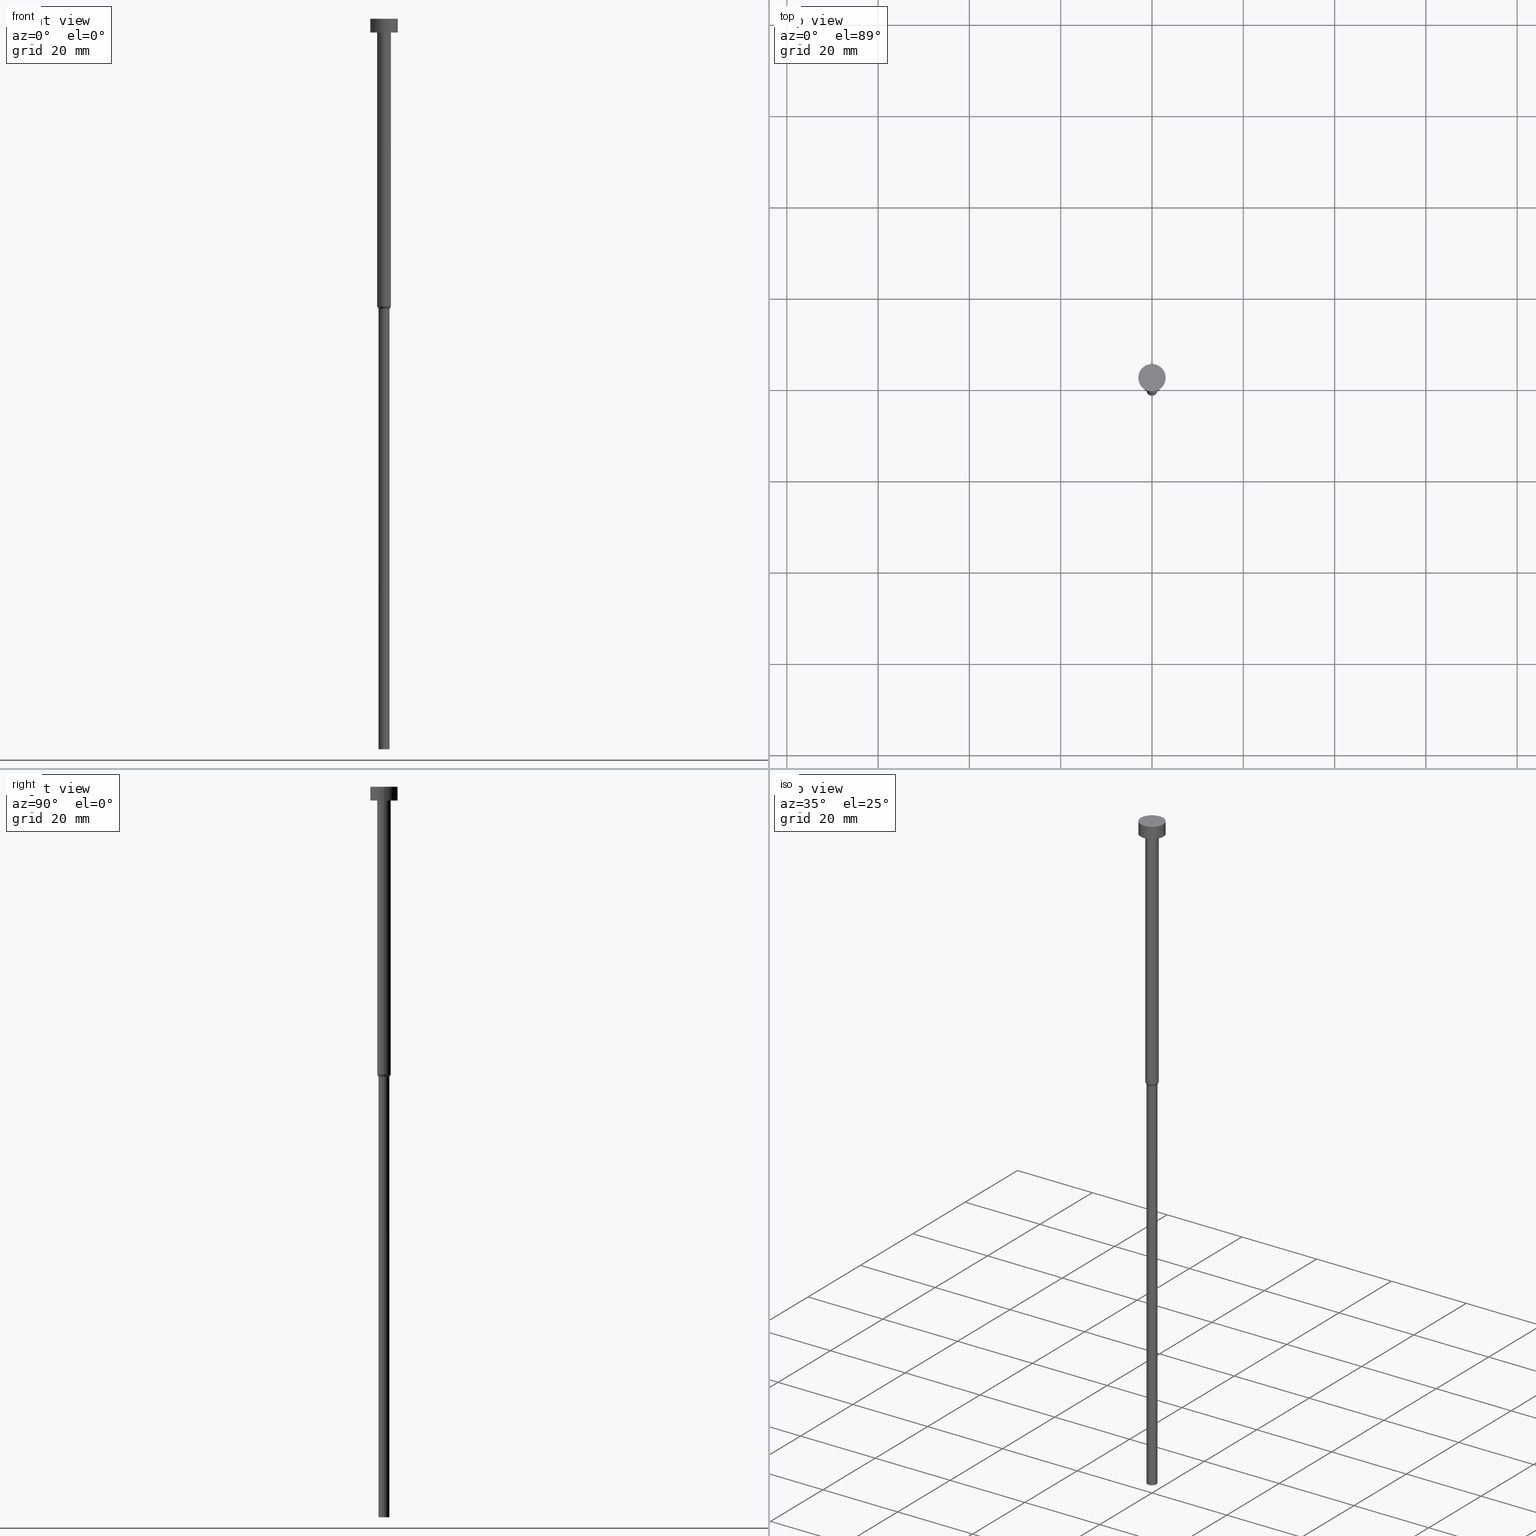
[diagram: canonical four-view strip — front | top / right | iso, engineering-drawing reading convention]
A machine part, canonical four-view strip (front | top / right | iso — engineering-drawing reading convention). The complete STEP part file that produces these views, byte-faithful:
ISO-10303-21;
HEADER;
FILE_DESCRIPTION (( 'STEP AP203' ),
    '1' );
FILE_NAME ('f124.STEP',
    '2023-02-13T10:00:31',
    ( '' ),
    ( '' ),
    'SwSTEP 2.0',
    'SolidWorks 2019',
    '' );
FILE_SCHEMA (( 'CONFIG_CONTROL_DESIGN' ));
ENDSEC;

DATA;
#1 = DATE_TIME_ROLE ( 'creation_date' ) ;
#2 = VECTOR ( 'NONE', #180, 1000.000000000000000 ) ;
#3 = VERTEX_POINT ( 'NONE', #332 ) ;
#4 = COORDINATED_UNIVERSAL_TIME_OFFSET ( 1, 0, .AHEAD. ) ;
#5 = ORIENTED_EDGE ( 'NONE', *, *, #19, .F. ) ;
#6 = EDGE_CURVE ( 'NONE', #333, #145, #274, .T. ) ;
#7 = ORIENTED_EDGE ( 'NONE', *, *, #243, .T. ) ;
#8 = ORIENTED_EDGE ( 'NONE', *, *, #52, .F. ) ;
#9 = CYLINDRICAL_SURFACE ( 'NONE', #347, 1.199999999999999956 ) ;
#10 = CIRCLE ( 'NONE', #55, 3.000000000000000000 ) ;
#11 = EDGE_LOOP ( 'NONE', ( #273, #87, #147, #197 ) ) ;
#12 = LINE ( 'NONE', #17, #229 ) ;
#13 = DIRECTION ( 'NONE',  ( 1.000000000000000000, 0.000000000000000000, 0.000000000000000000 ) ) ;
#14 = CLOSED_SHELL ( 'NONE', ( #231, #271, #200, #190, #234, #102, #115, #334, #46, #321, #302 ) ) ;
#15 = EDGE_CURVE ( 'NONE', #335, #109, #65, .T. ) ;
#16 = DIRECTION ( 'NONE',  ( -0.000000000000000000, -0.000000000000000000, 1.000000000000000000 ) ) ;
#17 = CARTESIAN_POINT ( 'NONE',  ( -1.500000000000000000, 1.836970198721029934E-16, -63.00000000000000000 ) ) ;
#18 = DIRECTION ( 'NONE',  ( 1.000000000000000000, 0.000000000000000000, 0.000000000000000000 ) ) ;
#19 = EDGE_CURVE ( 'NONE', #109, #335, #218, .T. ) ;
#20 = CC_DESIGN_APPROVAL ( #263, ( #241 ) ) ;
#21 =( NAMED_UNIT ( * ) SI_UNIT ( $, .STERADIAN. ) SOLID_ANGLE_UNIT ( ) );
#22 = FACE_OUTER_BOUND ( 'NONE', #256, .T. ) ;
#23 = AXIS2_PLACEMENT_3D ( 'NONE', #204, #343, #344 ) ;
#24 = FACE_OUTER_BOUND ( 'NONE', #205, .T. ) ;
#25 = AXIS2_PLACEMENT_3D ( 'NONE', #244, #129, #189 ) ;
#26 = PERSON_AND_ORGANIZATION ( #250, #183 ) ;
#27 = FACE_OUTER_BOUND ( 'NONE', #305, .T. ) ;
#28 = CALENDAR_DATE ( 2023, 13, 2 ) ;
#29 = CARTESIAN_POINT ( 'NONE',  ( -1.500000000000000000, 1.836970198721029934E-16, 0.000000000000000000 ) ) ;
#30 = ORIENTED_EDGE ( 'NONE', *, *, #119, .T. ) ;
#31 = CIRCLE ( 'NONE', #48, 1.199999999999999956 ) ;
#32 = APPLICATION_PROTOCOL_DEFINITION ( 'international standard', 'config_control_design', 1994, #132 ) ;
#33 = PRODUCT ( 'f124', 'f124', '', ( #58 ) ) ;
#34 = VERTEX_POINT ( 'NONE', #355 ) ;
#35 = DIRECTION ( 'NONE',  ( 1.000000000000000000, 0.000000000000000000, 0.000000000000000000 ) ) ;
#36 = EDGE_CURVE ( 'NONE', #154, #333, #354, .T. ) ;
#37 = LINE ( 'NONE', #288, #2 ) ;
#38 = ADVANCED_BREP_SHAPE_REPRESENTATION ( 'f124', ( #104, #308 ), #324 ) ;
#39 = CARTESIAN_POINT ( 'NONE',  ( 0.000000000000000000, 0.000000000000000000, -63.00000000000000000 ) ) ;
#40 = AXIS2_PLACEMENT_3D ( 'NONE', #133, #72, #240 ) ;
#41 = ORIENTED_EDGE ( 'NONE', *, *, #70, .T. ) ;
#42 = CARTESIAN_POINT ( 'NONE',  ( 0.000000000000000000, 0.000000000000000000, -160.0000000000000000 ) ) ;
#43 = CC_DESIGN_PERSON_AND_ORGANIZATION_ASSIGNMENT ( #196, #255, ( #241 ) ) ;
#44 = CARTESIAN_POINT ( 'NONE',  ( 0.000000000000000000, 0.000000000000000000, -3.000000000000000888 ) ) ;
#45 = AXIS2_PLACEMENT_3D ( 'NONE', #44, #239, #337 ) ;
#46 = ADVANCED_FACE ( 'NONE', ( #303, #27 ), #57, .T. ) ;
#47 = CARTESIAN_POINT ( 'NONE',  ( -1.199999999999999956, 1.469576158976823553E-16, -160.0000000000000000 ) ) ;
#48 = AXIS2_PLACEMENT_3D ( 'NONE', #97, #63, #286 ) ;
#49 = CYLINDRICAL_SURFACE ( 'NONE', #40, 1.500000000000000000 ) ;
#50 = CARTESIAN_POINT ( 'NONE',  ( 1.199999999999999956, 0.000000000000000000, 0.000000000000000000 ) ) ;
#51 = DIRECTION ( 'NONE',  ( 1.000000000000000000, 0.000000000000000000, 0.000000000000000000 ) ) ;
#52 = EDGE_CURVE ( 'NONE', #59, #83, #266, .T. ) ;
#53 = COORDINATED_UNIVERSAL_TIME_OFFSET ( 1, 0, .AHEAD. ) ;
#54 = DIRECTION ( 'NONE',  ( -0.000000000000000000, -0.000000000000000000, 1.000000000000000000 ) ) ;
#55 = AXIS2_PLACEMENT_3D ( 'NONE', #175, #68, #94 ) ;
#56 = ORIENTED_EDGE ( 'NONE', *, *, #19, .T. ) ;
#57 = PLANE ( 'NONE',  #141 ) ;
#58 = MECHANICAL_CONTEXT ( 'NONE', #296, 'mechanical' ) ;
#59 = VERTEX_POINT ( 'NONE', #232 ) ;
#60 = AXIS2_PLACEMENT_3D ( 'NONE', #245, #295, #134 ) ;
#61 = PERSON_AND_ORGANIZATION_ROLE ( 'creator' ) ;
#62 = DIRECTION ( 'NONE',  ( -0.000000000000000000, -0.000000000000000000, 1.000000000000000000 ) ) ;
#63 = DIRECTION ( 'NONE',  ( -0.000000000000000000, -0.000000000000000000, 1.000000000000000000 ) ) ;
#64 = DIRECTION ( 'NONE',  ( -0.000000000000000000, -0.000000000000000000, 1.000000000000000000 ) ) ;
#65 = CIRCLE ( 'NONE', #110, 3.000000000000000000 ) ;
#66 = DIRECTION ( 'NONE',  ( 1.000000000000000000, 0.000000000000000000, 0.000000000000000000 ) ) ;
#67 = FACE_OUTER_BOUND ( 'NONE', #230, .T. ) ;
#68 = DIRECTION ( 'NONE',  ( -0.000000000000000000, -0.000000000000000000, 1.000000000000000000 ) ) ;
#69 = CONICAL_SURFACE ( 'NONE', #117, 1.500000000000000000, 0.5235987755982992597 ) ;
#70 = EDGE_CURVE ( 'NONE', #145, #3, #188, .T. ) ;
#71 = DIRECTION ( 'NONE',  ( -0.000000000000000000, -0.000000000000000000, 1.000000000000000000 ) ) ;
#72 = DIRECTION ( 'NONE',  ( -0.000000000000000000, -0.000000000000000000, 1.000000000000000000 ) ) ;
#73 = CYLINDRICAL_SURFACE ( 'NONE', #60, 3.000000000000000000 ) ;
#74 = CARTESIAN_POINT ( 'NONE',  ( 3.000000000000000000, 0.000000000000000000, 0.000000000000000000 ) ) ;
#75 = PLANE ( 'NONE',  #25 ) ;
#76 = DESIGN_CONTEXT ( 'detailed design', #132, 'design' ) ;
#77 = PERSON_AND_ORGANIZATION_ROLE ( 'design_owner' ) ;
#78 = APPROVAL_ROLE ( '' ) ;
#79 = PERSON_AND_ORGANIZATION ( #250, #183 ) ;
#80 = ORIENTED_EDGE ( 'NONE', *, *, #192, .F. ) ;
#81 = DATE_AND_TIME ( #108, #159 ) ;
#82 = VECTOR ( 'NONE', #156, 1000.000000000000000 ) ;
#83 = VERTEX_POINT ( 'NONE', #47 ) ;
#84 = CC_DESIGN_PERSON_AND_ORGANIZATION_ASSIGNMENT ( #144, #168, ( #249 ) ) ;
#85 = ORIENTED_EDGE ( 'NONE', *, *, #98, .F. ) ;
#86 = ORIENTED_EDGE ( 'NONE', *, *, #140, .T. ) ;
#87 = ORIENTED_EDGE ( 'NONE', *, *, #216, .T. ) ;
#88 = DIRECTION ( 'NONE',  ( 1.000000000000000000, 0.000000000000000000, 0.000000000000000000 ) ) ;
#89 = ORIENTED_EDGE ( 'NONE', *, *, #342, .T. ) ;
#90 = APPROVAL ( #146, 'NEUR�EN�' ) ;
#91 = PLANE ( 'NONE',  #290 ) ;
#92 = ORIENTED_EDGE ( 'NONE', *, *, #346, .F. ) ;
#93 = CIRCLE ( 'NONE', #207, 1.199999999999999956 ) ;
#94 = DIRECTION ( 'NONE',  ( 1.000000000000000000, 0.000000000000000000, 0.000000000000000000 ) ) ;
#95 = ORIENTED_EDGE ( 'NONE', *, *, #6, .T. ) ;
#96 = DIRECTION ( 'NONE',  ( 1.000000000000000000, 0.000000000000000000, 0.000000000000000000 ) ) ;
#97 = CARTESIAN_POINT ( 'NONE',  ( 0.000000000000000000, 0.000000000000000000, -63.51961524227066036 ) ) ;
#98 = EDGE_CURVE ( 'NONE', #169, #109, #235, .T. ) ;
#99 = LINE ( 'NONE', #215, #268 ) ;
#100 = APPROVAL_PERSON_ORGANIZATION ( #304, #150, #353 ) ;
#101 = DIRECTION ( 'NONE',  ( -0.000000000000000000, -0.000000000000000000, 1.000000000000000000 ) ) ;
#102 = ADVANCED_FACE ( 'NONE', ( #160 ), #340, .T. ) ;
#103 = CARTESIAN_POINT ( 'NONE',  ( 3.000000000000000000, 0.000000000000000000, -3.000000000000000888 ) ) ;
#104 = MANIFOLD_SOLID_BREP ( 'Rotovat1', #14 ) ;
#105 = CARTESIAN_POINT ( 'NONE',  ( -1.199999999999999956, 1.469576158976823553E-16, -63.51961524227066036 ) ) ;
#106 = AXIS2_PLACEMENT_3D ( 'NONE', #320, #214, #187 ) ;
#107 = CALENDAR_DATE ( 2023, 13, 2 ) ;
#108 = CALENDAR_DATE ( 2023, 13, 2 ) ;
#109 = VERTEX_POINT ( 'NONE', #269 ) ;
#110 = AXIS2_PLACEMENT_3D ( 'NONE', #307, #139, #173 ) ;
#111 = EDGE_LOOP ( 'NONE', ( #221, #260, #137, #338 ) ) ;
#112 = VECTOR ( 'NONE', #313, 1000.000000000000000 ) ;
#113 = APPROVAL_DATE_TIME ( #81, #150 ) ;
#114 = ORIENTED_EDGE ( 'NONE', *, *, #297, .T. ) ;
#115 = ADVANCED_FACE ( 'NONE', ( #262 ), #69, .T. ) ;
#116 = ORIENTED_EDGE ( 'NONE', *, *, #98, .T. ) ;
#117 = AXIS2_PLACEMENT_3D ( 'NONE', #238, #64, #88 ) ;
#118 = EDGE_LOOP ( 'NONE', ( #310, #95, #195, #228 ) ) ;
#119 = EDGE_CURVE ( 'NONE', #236, #333, #12, .T. ) ;
#120 = PRODUCT_DEFINITION_FORMATION_WITH_SPECIFIED_SOURCE ( 'LIBOVOLN�', '', #33, .NOT_KNOWN. ) ;
#121 = FACE_OUTER_BOUND ( 'NONE', #331, .T. ) ;
#122 = ORIENTED_EDGE ( 'NONE', *, *, #192, .T. ) ;
#123 = FACE_OUTER_BOUND ( 'NONE', #276, .T. ) ;
#124 = CARTESIAN_POINT ( 'NONE',  ( -1.199999999999999956, 1.469576158976823553E-16, 0.000000000000000000 ) ) ;
#125 = ORIENTED_EDGE ( 'NONE', *, *, #15, .F. ) ;
#126 = DIRECTION ( 'NONE',  ( -0.000000000000000000, -0.000000000000000000, 1.000000000000000000 ) ) ;
#127 = CC_DESIGN_SECURITY_CLASSIFICATION ( #241, ( #120 ) ) ;
#128 = LINE ( 'NONE', #124, #112 ) ;
#129 = DIRECTION ( 'NONE',  ( 0.000000000000000000, -0.000000000000000000, 1.000000000000000000 ) ) ;
#130 = CC_DESIGN_APPROVAL ( #90, ( #120 ) ) ;
#131 = DIRECTION ( 'NONE',  ( -1.000000000000000000, 0.000000000000000000, -0.000000000000000000 ) ) ;
#132 = APPLICATION_CONTEXT ( 'configuration controlled 3d designs of mechanical parts and assemblies' ) ;
#133 = CARTESIAN_POINT ( 'NONE',  ( 0.000000000000000000, 0.000000000000000000, 0.000000000000000000 ) ) ;
#134 = DIRECTION ( 'NONE',  ( 1.000000000000000000, 0.000000000000000000, 0.000000000000000000 ) ) ;
#135 = VECTOR ( 'NONE', #161, 1000.000000000000000 ) ;
#136 = SHAPE_DEFINITION_REPRESENTATION ( #181, #38 ) ;
#137 = ORIENTED_EDGE ( 'NONE', *, *, #289, .T. ) ;
#138 = DATE_AND_TIME ( #28, #300 ) ;
#139 = DIRECTION ( 'NONE',  ( -0.000000000000000000, -0.000000000000000000, 1.000000000000000000 ) ) ;
#140 = EDGE_CURVE ( 'NONE', #301, #169, #10, .T. ) ;
#141 = AXIS2_PLACEMENT_3D ( 'NONE', #223, #226, #309 ) ;
#142 = DATE_TIME_ROLE ( 'classification_date' ) ;
#143 = DIRECTION ( 'NONE',  ( 1.000000000000000000, 0.000000000000000000, 0.000000000000000000 ) ) ;
#144 = PERSON_AND_ORGANIZATION ( #250, #183 ) ;
#145 = VERTEX_POINT ( 'NONE', #151 ) ;
#146 = APPROVAL_STATUS ( 'not_yet_approved' ) ;
#147 = ORIENTED_EDGE ( 'NONE', *, *, #212, .T. ) ;
#148 = EDGE_LOOP ( 'NONE', ( #7, #41 ) ) ;
#149 = VECTOR ( 'NONE', #277, 1000.000000000000000 ) ;
#150 = APPROVAL ( #247, 'NEUR�EN�' ) ;
#151 = CARTESIAN_POINT ( 'NONE',  ( -1.500000000000000000, 1.836970198721029934E-16, -3.000000000000000888 ) ) ;
#152 = CIRCLE ( 'NONE', #254, 3.000000000000000000 ) ;
#153 = DIRECTION ( 'NONE',  ( -0.000000000000000000, -0.000000000000000000, 1.000000000000000000 ) ) ;
#154 = VERTEX_POINT ( 'NONE', #209 ) ;
#155 = DIRECTION ( 'NONE',  ( -0.000000000000000000, -0.000000000000000000, 1.000000000000000000 ) ) ;
#156 = DIRECTION ( 'NONE',  ( -0.000000000000000000, -0.000000000000000000, 1.000000000000000000 ) ) ;
#157 = AXIS2_PLACEMENT_3D ( 'NONE', #202, #54, #143 ) ;
#158 = EDGE_CURVE ( 'NONE', #83, #236, #128, .T. ) ;
#159 = LOCAL_TIME ( 11, 0, 31.00000000000000000, #272 ) ;
#160 = FACE_OUTER_BOUND ( 'NONE', #166, .T. ) ;
#161 = DIRECTION ( 'NONE',  ( -0.000000000000000000, -0.000000000000000000, 1.000000000000000000 ) ) ;
#162 = CARTESIAN_POINT ( 'NONE',  ( -1.500000000000000000, 1.836970198721029934E-16, -63.00000000000000000 ) ) ;
#163 = DIRECTION ( 'NONE',  ( 1.000000000000000000, 0.000000000000000000, 0.000000000000000000 ) ) ;
#164 = CIRCLE ( 'NONE', #341, 1.500000000000000000 ) ;
#165 = DIRECTION ( 'NONE',  ( 0.000000000000000000, 0.000000000000000000, -1.000000000000000000 ) ) ;
#166 = EDGE_LOOP ( 'NONE', ( #203, #114, #89, #92 ) ) ;
#167 = ORIENTED_EDGE ( 'NONE', *, *, #158, .T. ) ;
#168 = PERSON_AND_ORGANIZATION_ROLE ( 'creator' ) ;
#169 = VERTEX_POINT ( 'NONE', #179 ) ;
#170 = EDGE_CURVE ( 'NONE', #169, #301, #152, .T. ) ;
#171 = ORIENTED_EDGE ( 'NONE', *, *, #297, .F. ) ;
#172 = CALENDAR_DATE ( 2023, 13, 2 ) ;
#173 = DIRECTION ( 'NONE',  ( 1.000000000000000000, 0.000000000000000000, 0.000000000000000000 ) ) ;
#174 = CC_DESIGN_PERSON_AND_ORGANIZATION_ASSIGNMENT ( #79, #61, ( #120 ) ) ;
#175 = CARTESIAN_POINT ( 'NONE',  ( 0.000000000000000000, 0.000000000000000000, -3.000000000000000888 ) ) ;
#176 = FACE_OUTER_BOUND ( 'NONE', #328, .T. ) ;
#177 = ORIENTED_EDGE ( 'NONE', *, *, #311, .F. ) ;
#178 = LOCAL_TIME ( 11, 0, 31.00000000000000000, #325 ) ;
#179 = CARTESIAN_POINT ( 'NONE',  ( -3.000000000000000000, 3.673940397442059868E-16, -3.000000000000000888 ) ) ;
#180 = DIRECTION ( 'NONE',  ( -0.000000000000000000, -0.000000000000000000, 1.000000000000000000 ) ) ;
#181 = PRODUCT_DEFINITION_SHAPE ( 'NONE', 'NONE',  #249 ) ;
#182 = CARTESIAN_POINT ( 'NONE',  ( -3.000000000000000000, 3.673940397442059868E-16, 0.000000000000000000 ) ) ;
#183 = ORGANIZATION ( 'NEUR�EN�', 'NEUR�EN�', '' ) ;
#184 = FACE_OUTER_BOUND ( 'NONE', #11, .T. ) ;
#185 = PRODUCT_RELATED_PRODUCT_CATEGORY ( 'detail', '', ( #33 ) ) ;
#186 = LINE ( 'NONE', #50, #135 ) ;
#187 = DIRECTION ( 'NONE',  ( 1.000000000000000000, 0.000000000000000000, 0.000000000000000000 ) ) ;
#188 = CIRCLE ( 'NONE', #45, 1.500000000000000000 ) ;
#189 = DIRECTION ( 'NONE',  ( 1.000000000000000000, 0.000000000000000000, 0.000000000000000000 ) ) ;
#190 = ADVANCED_FACE ( 'NONE', ( #123 ), #9, .T. ) ;
#191 = APPROVAL_ROLE ( '' ) ;
#192 = EDGE_CURVE ( 'NONE', #34, #236, #31, .T. ) ;
#193 = ORIENTED_EDGE ( 'NONE', *, *, #170, .T. ) ;
#194 = AXIS2_PLACEMENT_3D ( 'NONE', #345, #101, #18 ) ;
#195 = ORIENTED_EDGE ( 'NONE', *, *, #243, .F. ) ;
#196 = PERSON_AND_ORGANIZATION ( #250, #183 ) ;
#197 = ORIENTED_EDGE ( 'NONE', *, *, #70, .F. ) ;
#198 = PERSON_AND_ORGANIZATION ( #250, #183 ) ;
#199 = ORIENTED_EDGE ( 'NONE', *, *, #342, .F. ) ;
#200 = ADVANCED_FACE ( 'NONE', ( #67 ), #224, .T. ) ;
#201 = LOCAL_TIME ( 11, 0, 31.00000000000000000, #306 ) ;
#202 = CARTESIAN_POINT ( 'NONE',  ( 0.000000000000000000, 0.000000000000000000, -63.00000000000000000 ) ) ;
#203 = ORIENTED_EDGE ( 'NONE', *, *, #158, .F. ) ;
#204 = CARTESIAN_POINT ( 'NONE',  ( 0.000000000000000000, 0.000000000000000000, 0.000000000000000000 ) ) ;
#205 = EDGE_LOOP ( 'NONE', ( #85, #193, #352, #5 ) ) ;
#206 = CARTESIAN_POINT ( 'NONE',  ( 0.000000000000000000, 0.000000000000000000, -160.0000000000000000 ) ) ;
#207 = AXIS2_PLACEMENT_3D ( 'NONE', #318, #71, #51 ) ;
#208 = CC_DESIGN_DATE_AND_TIME_ASSIGNMENT ( #220, #142, ( #241 ) ) ;
#209 = CARTESIAN_POINT ( 'NONE',  ( 1.500000000000000000, 0.000000000000000000, -63.00000000000000000 ) ) ;
#210 = ORIENTED_EDGE ( 'NONE', *, *, #140, .F. ) ;
#211 = DIRECTION ( 'NONE',  ( 0.5000000000000003331, 0.000000000000000000, 0.8660254037844383745 ) ) ;
#212 = EDGE_CURVE ( 'NONE', #154, #3, #37, .T. ) ;
#213 = AXIS2_PLACEMENT_3D ( 'NONE', #316, #16, #259 ) ;
#214 = DIRECTION ( 'NONE',  ( -0.000000000000000000, -0.000000000000000000, 1.000000000000000000 ) ) ;
#215 = CARTESIAN_POINT ( 'NONE',  ( 1.500000000000000000, 0.000000000000000000, -63.00000000000000000 ) ) ;
#216 = EDGE_CURVE ( 'NONE', #333, #154, #164, .T. ) ;
#217 = CARTESIAN_POINT ( 'NONE',  ( 3.000000000000000000, 0.000000000000000000, -3.673940397442059868E-16 ) ) ;
#218 = CIRCLE ( 'NONE', #293, 3.000000000000000000 ) ;
#219 = CIRCLE ( 'NONE', #194, 1.500000000000000000 ) ;
#220 = DATE_AND_TIME ( #107, #285 ) ;
#221 = ORIENTED_EDGE ( 'NONE', *, *, #119, .F. ) ;
#222 = APPROVAL_DATE_TIME ( #299, #263 ) ;
#223 = CARTESIAN_POINT ( 'NONE',  ( 0.000000000000000000, -3.000000000000000000, -3.000000000000000888 ) ) ;
#224 = CONICAL_SURFACE ( 'NONE', #314, 1.500000000000000000, 0.5235987755982992597 ) ;
#225 = CALENDAR_DATE ( 2023, 13, 2 ) ;
#226 = DIRECTION ( 'NONE',  ( 0.000000000000000000, 0.000000000000000000, -1.000000000000000000 ) ) ;
#227 = DIRECTION ( 'NONE',  ( 1.000000000000000000, 0.000000000000000000, 0.000000000000000000 ) ) ;
#228 = ORIENTED_EDGE ( 'NONE', *, *, #212, .F. ) ;
#229 = VECTOR ( 'NONE', #284, 1000.000000000000114 ) ;
#230 = EDGE_LOOP ( 'NONE', ( #122, #30, #258, #281 ) ) ;
#231 = ADVANCED_FACE ( 'NONE', ( #121 ), #336, .T. ) ;
#232 = CARTESIAN_POINT ( 'NONE',  ( 1.199999999999999956, 0.000000000000000000, -160.0000000000000000 ) ) ;
#233 = DIRECTION ( 'NONE',  ( -0.000000000000000000, -0.000000000000000000, 1.000000000000000000 ) ) ;
#234 = ADVANCED_FACE ( 'NONE', ( #176 ), #91, .T. ) ;
#235 = LINE ( 'NONE', #182, #82 ) ;
#236 = VERTEX_POINT ( 'NONE', #105 ) ;
#237 = CIRCLE ( 'NONE', #278, 1.199999999999999956 ) ;
#238 = CARTESIAN_POINT ( 'NONE',  ( 0.000000000000000000, 0.000000000000000000, -63.00000000000000000 ) ) ;
#239 = DIRECTION ( 'NONE',  ( -0.000000000000000000, -0.000000000000000000, 1.000000000000000000 ) ) ;
#240 = DIRECTION ( 'NONE',  ( 1.000000000000000000, 0.000000000000000000, 0.000000000000000000 ) ) ;
#241 = SECURITY_CLASSIFICATION ( '', '', #257 ) ;
#242 = DIRECTION ( 'NONE',  ( 0.000000000000000000, 0.000000000000000000, 1.000000000000000000 ) ) ;
#243 = EDGE_CURVE ( 'NONE', #3, #145, #219, .T. ) ;
#244 = CARTESIAN_POINT ( 'NONE',  ( 0.000000000000000000, 0.000000000000000000, -1.836970198721029934E-16 ) ) ;
#245 = CARTESIAN_POINT ( 'NONE',  ( 0.000000000000000000, 0.000000000000000000, 0.000000000000000000 ) ) ;
#246 =( NAMED_UNIT ( * ) PLANE_ANGLE_UNIT ( ) SI_UNIT ( $, .RADIAN. ) );
#247 = APPROVAL_STATUS ( 'not_yet_approved' ) ;
#248 = ORIENTED_EDGE ( 'NONE', *, *, #15, .T. ) ;
#249 = PRODUCT_DEFINITION ( 'NEZN�M�', '', #120, #76 ) ;
#250 = PERSON ( 'NEUR�EN�', 'NEUR�EN�', 'NEUR�EN�', ('NEUR�EN�'), ('NEUR�EN�'), ('NEUR�EN�') ) ;
#251 = CARTESIAN_POINT ( 'NONE',  ( 0.000000000000000000, 0.000000000000000000, -3.673940397442059868E-16 ) ) ;
#252 = APPROVAL_STATUS ( 'not_yet_approved' ) ;
#253 = ORIENTED_EDGE ( 'NONE', *, *, #170, .F. ) ;
#254 = AXIS2_PLACEMENT_3D ( 'NONE', #315, #126, #96 ) ;
#255 = PERSON_AND_ORGANIZATION_ROLE ( 'classification_officer' ) ;
#256 = EDGE_LOOP ( 'NONE', ( #248, #56 ) ) ;
#257 = SECURITY_CLASSIFICATION_LEVEL ( 'unclassified' ) ;
#258 = ORIENTED_EDGE ( 'NONE', *, *, #36, .F. ) ;
#259 = DIRECTION ( 'NONE',  ( 1.000000000000000000, 0.000000000000000000, 0.000000000000000000 ) ) ;
#260 = ORIENTED_EDGE ( 'NONE', *, *, #346, .T. ) ;
#261 = VECTOR ( 'NONE', #322, 1000.000000000000000 ) ;
#262 = FACE_OUTER_BOUND ( 'NONE', #111, .T. ) ;
#263 = APPROVAL ( #252, 'NEUR�EN�' ) ;
#264 = ORIENTED_EDGE ( 'NONE', *, *, #52, .T. ) ;
#265 = CARTESIAN_POINT ( 'NONE',  ( 0.000000000000000000, 0.000000000000000000, 0.000000000000000000 ) ) ;
#266 = CIRCLE ( 'NONE', #339, 1.199999999999999956 ) ;
#267 = CARTESIAN_POINT ( 'NONE',  ( 0.000000000000000000, 0.000000000000000000, -63.00000000000000000 ) ) ;
#268 = VECTOR ( 'NONE', #211, 1000.000000000000114 ) ;
#269 = CARTESIAN_POINT ( 'NONE',  ( -3.000000000000000000, 3.673940397442059868E-16, -3.673940397442059868E-16 ) ) ;
#270 = CARTESIAN_POINT ( 'NONE',  ( 0.000000000000000000, 0.000000000000000000, -63.51961524227066036 ) ) ;
#271 = ADVANCED_FACE ( 'NONE', ( #291 ), #49, .T. ) ;
#272 = COORDINATED_UNIVERSAL_TIME_OFFSET ( 1, 0, .AHEAD. ) ;
#273 = ORIENTED_EDGE ( 'NONE', *, *, #6, .F. ) ;
#274 = LINE ( 'NONE', #29, #149 ) ;
#275 = APPROVAL_DATE_TIME ( #138, #90 ) ;
#276 = EDGE_LOOP ( 'NONE', ( #264, #167, #80, #199 ) ) ;
#277 = DIRECTION ( 'NONE',  ( -0.000000000000000000, -0.000000000000000000, 1.000000000000000000 ) ) ;
#278 = AXIS2_PLACEMENT_3D ( 'NONE', #270, #323, #163 ) ;
#279 = CC_DESIGN_PERSON_AND_ORGANIZATION_ASSIGNMENT ( #198, #77, ( #33 ) ) ;
#280 = PERSON_AND_ORGANIZATION_ROLE ( 'design_supplier' ) ;
#281 = ORIENTED_EDGE ( 'NONE', *, *, #289, .F. ) ;
#282 = DIRECTION ( 'NONE',  ( 1.000000000000000000, 0.000000000000000000, 0.000000000000000000 ) ) ;
#283 = CC_DESIGN_DATE_AND_TIME_ASSIGNMENT ( #330, #1, ( #249 ) ) ;
#284 = DIRECTION ( 'NONE',  ( -0.5000000000000003331, 6.123233995736769734E-17, 0.8660254037844383745 ) ) ;
#285 = LOCAL_TIME ( 11, 0, 31.00000000000000000, #4 ) ;
#286 = DIRECTION ( 'NONE',  ( 1.000000000000000000, 0.000000000000000000, 0.000000000000000000 ) ) ;
#287 = DIRECTION ( 'NONE',  ( -0.000000000000000000, -0.000000000000000000, 1.000000000000000000 ) ) ;
#288 = CARTESIAN_POINT ( 'NONE',  ( 1.500000000000000000, 0.000000000000000000, 0.000000000000000000 ) ) ;
#289 = EDGE_CURVE ( 'NONE', #34, #154, #99, .T. ) ;
#290 = AXIS2_PLACEMENT_3D ( 'NONE', #206, #165, #131 ) ;
#291 = FACE_OUTER_BOUND ( 'NONE', #118, .T. ) ;
#292 =( LENGTH_UNIT ( ) NAMED_UNIT ( * ) SI_UNIT ( .MILLI., .METRE. ) );
#293 = AXIS2_PLACEMENT_3D ( 'NONE', #251, #62, #35 ) ;
#294 = LINE ( 'NONE', #74, #261 ) ;
#295 = DIRECTION ( 'NONE',  ( -0.000000000000000000, -0.000000000000000000, 1.000000000000000000 ) ) ;
#296 = APPLICATION_CONTEXT ( 'configuration controlled 3d designs of mechanical parts and assemblies' ) ;
#297 = EDGE_CURVE ( 'NONE', #83, #59, #93, .T. ) ;
#298 = PERSON_AND_ORGANIZATION ( #250, #183 ) ;
#299 = DATE_AND_TIME ( #225, #178 ) ;
#300 = LOCAL_TIME ( 11, 0, 31.00000000000000000, #53 ) ;
#301 = VERTEX_POINT ( 'NONE', #103 ) ;
#302 = ADVANCED_FACE ( 'NONE', ( #22 ), #75, .T. ) ;
#303 = FACE_BOUND ( 'NONE', #148, .T. ) ;
#304 = PERSON_AND_ORGANIZATION ( #250, #183 ) ;
#305 = EDGE_LOOP ( 'NONE', ( #210, #253 ) ) ;
#306 = COORDINATED_UNIVERSAL_TIME_OFFSET ( 1, 0, .AHEAD. ) ;
#307 = CARTESIAN_POINT ( 'NONE',  ( 0.000000000000000000, 0.000000000000000000, -3.673940397442059868E-16 ) ) ;
#308 = AXIS2_PLACEMENT_3D ( 'NONE', #348, #242, #227 ) ;
#309 = DIRECTION ( 'NONE',  ( -1.000000000000000000, 0.000000000000000000, -0.000000000000000000 ) ) ;
#310 = ORIENTED_EDGE ( 'NONE', *, *, #36, .T. ) ;
#311 = EDGE_CURVE ( 'NONE', #301, #335, #294, .T. ) ;
#312 = DIRECTION ( 'NONE',  ( 1.000000000000000000, 0.000000000000000000, 0.000000000000000000 ) ) ;
#313 = DIRECTION ( 'NONE',  ( -0.000000000000000000, -0.000000000000000000, 1.000000000000000000 ) ) ;
#314 = AXIS2_PLACEMENT_3D ( 'NONE', #39, #153, #282 ) ;
#315 = CARTESIAN_POINT ( 'NONE',  ( 0.000000000000000000, 0.000000000000000000, -3.000000000000000888 ) ) ;
#316 = CARTESIAN_POINT ( 'NONE',  ( 0.000000000000000000, 0.000000000000000000, 0.000000000000000000 ) ) ;
#317 = CC_DESIGN_PERSON_AND_ORGANIZATION_ASSIGNMENT ( #298, #280, ( #120 ) ) ;
#318 = CARTESIAN_POINT ( 'NONE',  ( 0.000000000000000000, 0.000000000000000000, -160.0000000000000000 ) ) ;
#319 = APPROVAL_PERSON_ORGANIZATION ( #326, #90, #191 ) ;
#320 = CARTESIAN_POINT ( 'NONE',  ( 0.000000000000000000, 0.000000000000000000, 0.000000000000000000 ) ) ;
#321 = ADVANCED_FACE ( 'NONE', ( #24 ), #73, .T. ) ;
#322 = DIRECTION ( 'NONE',  ( -0.000000000000000000, -0.000000000000000000, 1.000000000000000000 ) ) ;
#323 = DIRECTION ( 'NONE',  ( -0.000000000000000000, -0.000000000000000000, 1.000000000000000000 ) ) ;
#324 =( GEOMETRIC_REPRESENTATION_CONTEXT ( 3 ) GLOBAL_UNCERTAINTY_ASSIGNED_CONTEXT ( ( #329 ) ) GLOBAL_UNIT_ASSIGNED_CONTEXT ( ( #292, #246, #21 ) ) REPRESENTATION_CONTEXT ( 'NONE', 'WORKASPACE' ) );
#325 = COORDINATED_UNIVERSAL_TIME_OFFSET ( 1, 0, .AHEAD. ) ;
#326 = PERSON_AND_ORGANIZATION ( #250, #183 ) ;
#327 = APPROVAL_PERSON_ORGANIZATION ( #26, #263, #78 ) ;
#328 = EDGE_LOOP ( 'NONE', ( #8, #171 ) ) ;
#329 = UNCERTAINTY_MEASURE_WITH_UNIT (LENGTH_MEASURE( 1.000000000000000082E-05 ), #292, 'distance_accuracy_value', 'NONE');
#330 = DATE_AND_TIME ( #172, #201 ) ;
#331 = EDGE_LOOP ( 'NONE', ( #86, #116, #125, #177 ) ) ;
#332 = CARTESIAN_POINT ( 'NONE',  ( 1.500000000000000000, 0.000000000000000000, -3.000000000000000888 ) ) ;
#333 = VERTEX_POINT ( 'NONE', #162 ) ;
#334 = ADVANCED_FACE ( 'NONE', ( #184 ), #350, .T. ) ;
#335 = VERTEX_POINT ( 'NONE', #217 ) ;
#336 = CYLINDRICAL_SURFACE ( 'NONE', #213, 3.000000000000000000 ) ;
#337 = DIRECTION ( 'NONE',  ( 1.000000000000000000, 0.000000000000000000, 0.000000000000000000 ) ) ;
#338 = ORIENTED_EDGE ( 'NONE', *, *, #216, .F. ) ;
#339 = AXIS2_PLACEMENT_3D ( 'NONE', #42, #155, #66 ) ;
#340 = CYLINDRICAL_SURFACE ( 'NONE', #23, 1.199999999999999956 ) ;
#341 = AXIS2_PLACEMENT_3D ( 'NONE', #267, #287, #312 ) ;
#342 = EDGE_CURVE ( 'NONE', #59, #34, #186, .T. ) ;
#343 = DIRECTION ( 'NONE',  ( -0.000000000000000000, -0.000000000000000000, 1.000000000000000000 ) ) ;
#344 = DIRECTION ( 'NONE',  ( 1.000000000000000000, 0.000000000000000000, 0.000000000000000000 ) ) ;
#345 = CARTESIAN_POINT ( 'NONE',  ( 0.000000000000000000, 0.000000000000000000, -3.000000000000000888 ) ) ;
#346 = EDGE_CURVE ( 'NONE', #236, #34, #237, .T. ) ;
#347 = AXIS2_PLACEMENT_3D ( 'NONE', #265, #233, #13 ) ;
#348 = CARTESIAN_POINT ( 'NONE',  ( 0.000000000000000000, 0.000000000000000000, 0.000000000000000000 ) ) ;
#349 = APPLICATION_PROTOCOL_DEFINITION ( 'international standard', 'config_control_design', 1994, #296 ) ;
#350 = CYLINDRICAL_SURFACE ( 'NONE', #106, 1.500000000000000000 ) ;
#351 = CC_DESIGN_APPROVAL ( #150, ( #249 ) ) ;
#352 = ORIENTED_EDGE ( 'NONE', *, *, #311, .T. ) ;
#353 = APPROVAL_ROLE ( '' ) ;
#354 = CIRCLE ( 'NONE', #157, 1.500000000000000000 ) ;
#355 = CARTESIAN_POINT ( 'NONE',  ( 1.199999999999999956, 0.000000000000000000, -63.51961524227066036 ) ) ;
ENDSEC;
END-ISO-10303-21;
